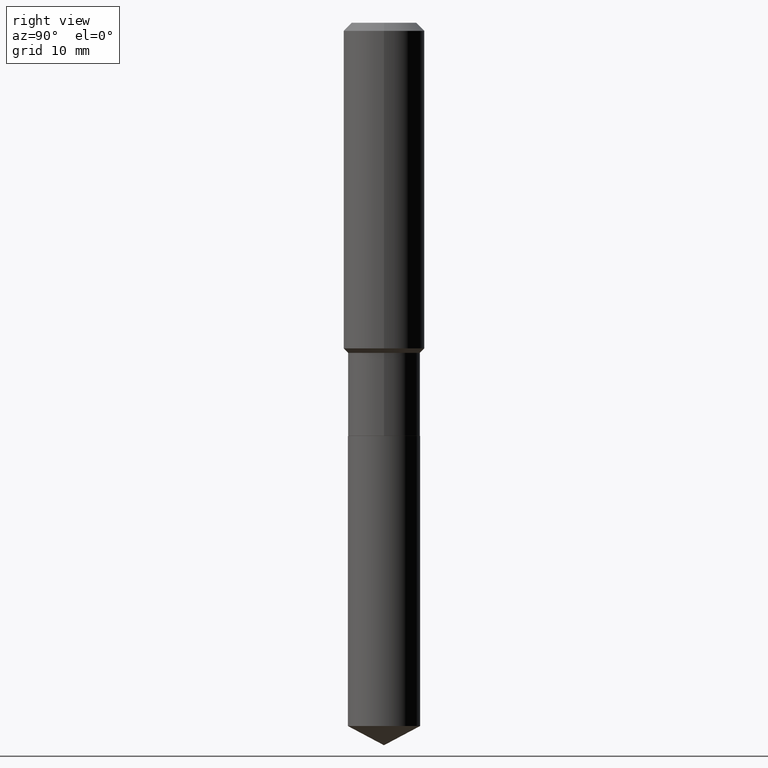
[diagram: clean part render]
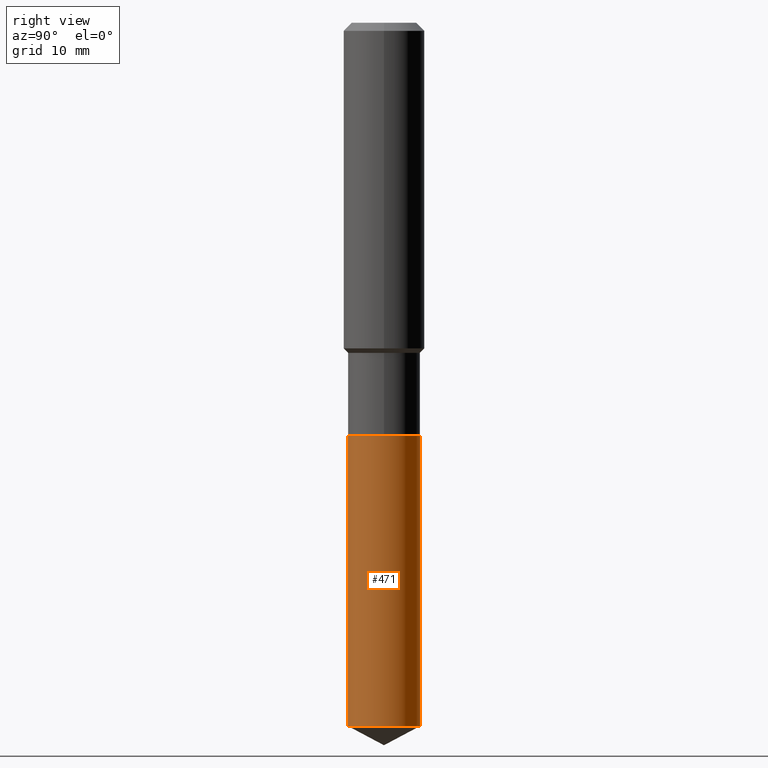
[diagram: same view with one face highlighted and labeled with its STEP entity id]
A machine part, right view. The second image highlights one B-rep face of the part: STEP entity #471.
In plain terms, the highlighted cylindrical surface (edge-blend (fillet) strip) has radius 4.4501 mm, axis along (-0, 0, 1).
Its self-contained STEP definition (entity closure, byte-faithful):
#14 = CARTESIAN_POINT ( 'NONE',  ( 1.244870873051744200E-15, 0.1751999999999929725, -2.003900000000000237 ) ) ;
#21 = DIRECTION ( 'NONE',  ( -2.445516792538043674E-29, 3.491412619654569238E-15, 1.000000000000000000 ) ) ;
#27 = DIRECTION ( 'NONE',  ( -6.982962677686265133E-15, -1.000000000000000000, 3.118547937972903315E-15 ) ) ;
#41 = ORIENTED_EDGE ( 'NONE', *, *, #65, .T. ) ;
#48 = AXIS2_PLACEMENT_3D ( 'NONE', #325, #231, #118 ) ;
#50 = CARTESIAN_POINT ( 'NONE',  ( 1.244870873051778712E-15, 0.1751999999999880597, -3.410744507572909701 ) ) ;
#65 = EDGE_CURVE ( 'NONE', #276, #119, #370, .T. ) ;
#79 = AXIS2_PLACEMENT_3D ( 'NONE', #343, #21, #173 ) ;
#104 = LINE ( 'NONE', #208, #392 ) ;
#110 = VECTOR ( 'NONE', #218, 39.37007874015748143 ) ;
#111 = CIRCLE ( 'NONE', #48, 0.1751999999999999946 ) ;
#118 = DIRECTION ( 'NONE',  ( -6.982962677686265133E-15, -1.000000000000000000, 3.118547937972903315E-15 ) ) ;
#119 = VERTEX_POINT ( 'NONE', #254 ) ;
#132 = VERTEX_POINT ( 'NONE', #161 ) ;
#136 = CIRCLE ( 'NONE', #79, 0.1751999999999999946 ) ;
#149 = DIRECTION ( 'NONE',  ( -2.445516792538043674E-29, 3.491412619654569238E-15, 1.000000000000000000 ) ) ;
#151 = EDGE_LOOP ( 'NONE', ( #324, #41, #404, #403 ) ) ;
#161 = CARTESIAN_POINT ( 'NONE',  ( -1.223415061130550258E-15, -0.1752000000000119018, -3.410744507572908368 ) ) ;
#172 = EDGE_CURVE ( 'NONE', #432, #119, #111, .T. ) ;
#173 = DIRECTION ( 'NONE',  ( -6.982962677686265133E-15, -1.000000000000000000, 3.118547937972903315E-15 ) ) ;
#179 = CARTESIAN_POINT ( 'NONE',  ( -1.223415061130584771E-15, -0.1752000000000069890, -2.003899999999998904 ) ) ;
#208 = CARTESIAN_POINT ( 'NONE',  ( -1.223415061130584771E-15, -0.1752000000000069890, -2.003899999999998904 ) ) ;
#218 = DIRECTION ( 'NONE',  ( -2.445516792538043674E-29, 3.491412619654568844E-15, 1.000000000000000000 ) ) ;
#227 = EDGE_CURVE ( 'NONE', #132, #432, #104, .T. ) ;
#229 = EDGE_CURVE ( 'NONE', #132, #276, #136, .T. ) ;
#230 = AXIS2_PLACEMENT_3D ( 'NONE', #304, #149, #27 ) ;
#231 = DIRECTION ( 'NONE',  ( -2.445516792538043674E-29, 3.491412619654569238E-15, 1.000000000000000000 ) ) ;
#254 = CARTESIAN_POINT ( 'NONE',  ( 1.244870873051778910E-15, 0.1751999999999929725, -2.003900000000000237 ) ) ;
#276 = VERTEX_POINT ( 'NONE', #50 ) ;
#304 = CARTESIAN_POINT ( 'NONE',  ( 4.900474940714394579E-29, -6.996579454907778104E-15, -2.003899999999999793 ) ) ;
#324 = ORIENTED_EDGE ( 'NONE', *, *, #229, .T. ) ;
#325 = CARTESIAN_POINT ( 'NONE',  ( 4.900474940714394579E-29, -6.996579454907778104E-15, -2.003899999999999793 ) ) ;
#343 = CARTESIAN_POINT ( 'NONE',  ( 8.340936808473858960E-29, -1.190845412253955360E-14, -3.410744507572909257 ) ) ;
#370 = LINE ( 'NONE', #14, #110 ) ;
#381 = CYLINDRICAL_SURFACE ( 'NONE', #230, 0.1751999999999999946 ) ;
#392 = VECTOR ( 'NONE', #414, 39.37007874015748143 ) ;
#403 = ORIENTED_EDGE ( 'NONE', *, *, #227, .F. ) ;
#404 = ORIENTED_EDGE ( 'NONE', *, *, #172, .F. ) ;
#414 = DIRECTION ( 'NONE',  ( -2.445516792538043674E-29, 3.491412619654568844E-15, 1.000000000000000000 ) ) ;
#432 = VERTEX_POINT ( 'NONE', #179 ) ;
#450 = FACE_OUTER_BOUND ( 'NONE', #151, .T. ) ;
#471 = ADVANCED_FACE ( 'NONE', ( #450 ), #381, .T. ) ;